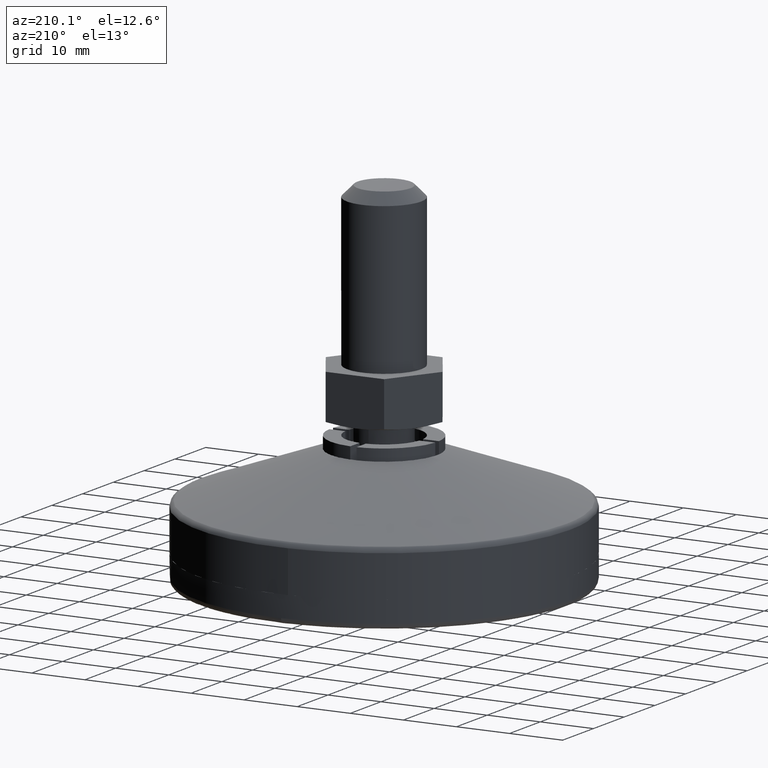
[diagram: clean part render]
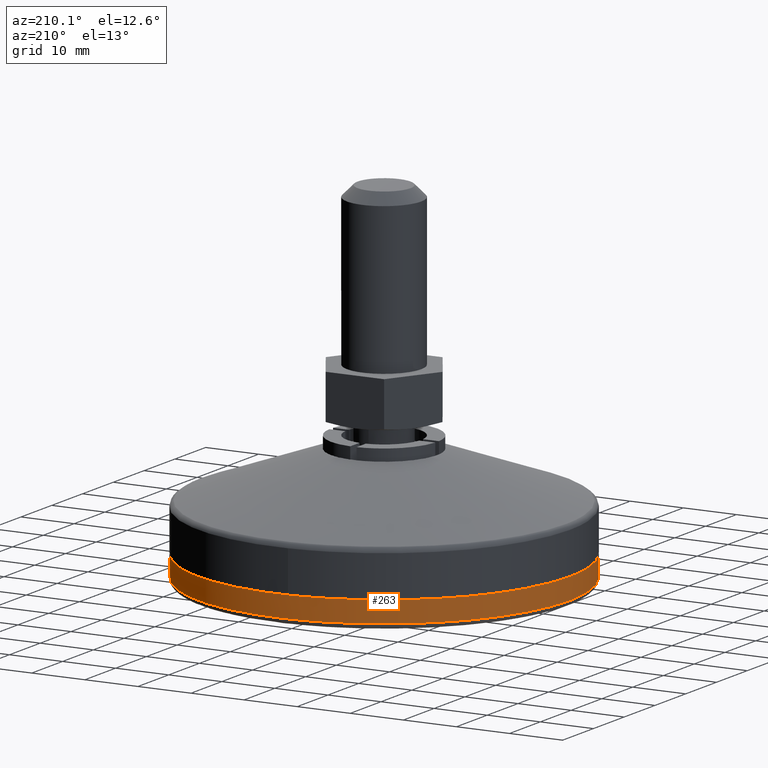
[diagram: same view with one face highlighted and labeled with its STEP entity id]
A machine part, auxiliary view. The second image highlights one B-rep face of the part: STEP entity #263.
In plain terms, the highlighted face is a freeform B-spline surface patch.
Its self-contained STEP definition (entity closure, byte-faithful):
#62=CARTESIAN_POINT('',(34.158915734717603,-7.626826065131843,0.999999999999608));
#63=VERTEX_POINT('',#62);
#64=CARTESIAN_POINT('',(2.746052590281755,-34.892107921006392,0.999999999999502));
#65=VERTEX_POINT('',#64);
#79=CARTESIAN_POINT('',(34.158915664180910,-7.626826381051620,4.999999999999801));
#80=VERTEX_POINT('',#79);
#81=CARTESIAN_POINT('',(34.158915664180910,-7.626826381051620,4.999999999999801));
#82=CARTESIAN_POINT('',(34.158915734717603,-7.626826065131843,0.999999999999608));
#83=QUASI_UNIFORM_CURVE('',1,(#81,#82),.UNSPECIFIED.,.F.,.U.);
#84=EDGE_CURVE('',#80,#63,#83,.T.);
#86=CARTESIAN_POINT('',(2.746052784867262,-34.892107905692363,4.999999999999800));
#87=VERTEX_POINT('',#86);
#101=CARTESIAN_POINT('',(2.746052784867262,-34.892107905692363,4.999999999999800));
#102=CARTESIAN_POINT('',(2.746052590281755,-34.892107921006392,0.999999999999502));
#103=QUASI_UNIFORM_CURVE('',1,(#101,#102),.UNSPECIFIED.,.F.,.U.);
#104=EDGE_CURVE('',#87,#65,#103,.T.);
#109=CARTESIAN_POINT('',(2.746068350474570,-34.892106680659467,5.100000000001711));
#110=CARTESIAN_POINT('',(-32.146038330184908,-37.638175031134047,5.100000000001712));
#111=CARTESIAN_POINT('',(-34.892106680659467,-2.746068350474570,5.100000000001711));
#112=CARTESIAN_POINT('',(-37.638175031134047,32.146038330184908,5.100000000001712));
#113=CARTESIAN_POINT('',(-2.746068350474570,34.892106680659467,5.100000000001711));
#114=CARTESIAN_POINT('',(32.146038330184908,37.638175031134047,5.100000000001712));
#115=CARTESIAN_POINT('',(34.892106680659467,2.746068350474570,5.100000000001711));
#116=CARTESIAN_POINT('',(35.304624102185414,-2.495462464672866,5.100000000001711));
#117=CARTESIAN_POINT('',(34.158910018427406,-7.626851667167752,5.100000000001710));
#118=CARTESIAN_POINT('',(2.746068350474570,-34.892106680659467,0.897499999921446));
#119=CARTESIAN_POINT('',(-32.146038330184908,-37.638175031134047,0.897499999921446));
#120=CARTESIAN_POINT('',(-34.892106680659467,-2.746068350474570,0.897499999921446));
#121=CARTESIAN_POINT('',(-37.638175031134047,32.146038330184908,0.897499999921446));
#122=CARTESIAN_POINT('',(-2.746068350474570,34.892106680659467,0.897499999921446));
#123=CARTESIAN_POINT('',(32.146038330184908,37.638175031134047,0.897499999921446));
#124=CARTESIAN_POINT('',(34.892106680659467,2.746068350474570,0.897499999921446));
#125=CARTESIAN_POINT('',(35.304624102185414,-2.495462464672866,0.897499999921446));
#126=CARTESIAN_POINT('',(34.158910018427406,-7.626851667167752,0.897499999921446));
#134=(BOUNDED_SURFACE()B_SPLINE_SURFACE(2,1,((#109,#118),(#110,#119),(#111,#120),(#112,#121),(#113,#122),(#114,#123),(#115,#124),(#116,#125),(#117,#126)),.UNSPECIFIED.,.F.,.F.,.U.)B_SPLINE_SURFACE_WITH_KNOTS((3,2,2,2,3),(2,2),(0.0,57.989898732233300,115.979797464466600,173.969696196699910,185.567675943146610),(0.0,4.202500000080265),.UNSPECIFIED.)GEOMETRIC_REPRESENTATION_ITEM()RATIONAL_B_SPLINE_SURFACE(((1.0,1.0),(0.707106781186548,0.707106781186548),(1.0,1.0),(0.707106781186548,0.707106781186548),(1.0,1.0),(0.707106781186548,0.707106781186548),(1.0,1.0),(0.941421356237310,0.941421356237310),(0.906274169979695,0.906274169979695)))REPRESENTATION_ITEM('')SURFACE());
#135=CARTESIAN_POINT('',(35.0,0.0,0.999999999999801));
#136=VERTEX_POINT('',#135);
#137=CARTESIAN_POINT('',(35.0,0.0,0.999999999999801));
#138=CARTESIAN_POINT('',(35.000000000000007,-3.859790302433122,0.999999999999801));
#139=CARTESIAN_POINT('',(34.158915734717596,-7.626826065131842,0.999999999999608));
#147=(BOUNDED_CURVE()B_SPLINE_CURVE(2,(#137,#138,#139),.UNSPECIFIED.,.F.,.U.)B_SPLINE_CURVE_WITH_KNOTS((3,3),(0.500000000000000,0.537286544577424),.UNSPECIFIED.)CURVE()GEOMETRIC_REPRESENTATION_ITEM()RATIONAL_B_SPLINE_CURVE((1.0,0.956316095761148,0.925662766264038))REPRESENTATION_ITEM(''));
#148=EDGE_CURVE('',#136,#63,#147,.T.);
#149=ORIENTED_EDGE('',*,*,#148,.F.);
#150=CARTESIAN_POINT('',(-0.879553340543419,34.988946624914831,0.999999999923406));
#151=VERTEX_POINT('',#150);
#152=CARTESIAN_POINT('',(-0.879553340543419,34.988946624914824,0.999999999923406));
#153=CARTESIAN_POINT('',(-0.439846124344907,35.0,0.999999999999801));
#154=CARTESIAN_POINT('',(0.0,35.0,0.999999999999801));
#155=CARTESIAN_POINT('',(34.999999999999993,34.999999999999993,0.999999999999801));
#156=CARTESIAN_POINT('',(35.0,0.0,0.999999999999801));
#164=(BOUNDED_CURVE()B_SPLINE_CURVE(2,(#152,#153,#154,#155,#156),.UNSPECIFIED.,.F.,.U.)B_SPLINE_CURVE_WITH_KNOTS((3,2,3),(0.245579891769541,0.250000000000000,0.500000000000000),.UNSPECIFIED.)CURVE()GEOMETRIC_REPRESENTATION_ITEM()RATIONAL_B_SPLINE_CURVE((0.989826157680975,0.994821521091509,1.0,0.707106781186548,1.0))REPRESENTATION_ITEM(''));
#165=EDGE_CURVE('',#151,#136,#164,.T.);
#166=ORIENTED_EDGE('',*,*,#165,.F.);
#167=CARTESIAN_POINT('',(-35.0,0.0,0.999999999999801));
#168=VERTEX_POINT('',#167);
#169=CARTESIAN_POINT('',(-35.0,0.0,0.999999999999801));
#170=CARTESIAN_POINT('',(-35.000000000000007,34.131225666270772,0.999999999999801));
#171=CARTESIAN_POINT('',(-0.879553340543419,34.988946624914831,0.999999999923406));
#179=(BOUNDED_CURVE()B_SPLINE_CURVE(2,(#169,#170,#171),.UNSPECIFIED.,.F.,.U.)B_SPLINE_CURVE_WITH_KNOTS((3,3),(0.0,0.245579891769541),.UNSPECIFIED.)CURVE()GEOMETRIC_REPRESENTATION_ITEM()RATIONAL_B_SPLINE_CURVE((1.0,0.712285260095039,0.989826157680974))REPRESENTATION_ITEM(''));
#180=EDGE_CURVE('',#168,#151,#179,.T.);
#181=ORIENTED_EDGE('',*,*,#180,.F.);
#182=CARTESIAN_POINT('',(-34.988946624914831,-0.879553340543416,0.999999999923404));
#183=VERTEX_POINT('',#182);
#184=CARTESIAN_POINT('',(-34.988946624914824,-0.879553340543416,0.999999999923404));
#185=CARTESIAN_POINT('',(-35.0,-0.439846124344904,0.999999999999801));
#186=CARTESIAN_POINT('',(-35.0,0.0,0.999999999999801));
#194=(BOUNDED_CURVE()B_SPLINE_CURVE(2,(#184,#185,#186),.UNSPECIFIED.,.F.,.U.)B_SPLINE_CURVE_WITH_KNOTS((3,3),(0.995579891769541,1.0),.UNSPECIFIED.)CURVE()GEOMETRIC_REPRESENTATION_ITEM()RATIONAL_B_SPLINE_CURVE((0.989826157680975,0.994821521091509,1.0))REPRESENTATION_ITEM(''));
#195=EDGE_CURVE('',#183,#168,#194,.T.);
#196=ORIENTED_EDGE('',*,*,#195,.F.);
#197=CARTESIAN_POINT('',(2.746052590281755,-34.892107921006385,0.999999999999502));
#198=CARTESIAN_POINT('',(1.375145828603335,-35.0,0.999999999999801));
#199=CARTESIAN_POINT('',(0.0,-35.0,0.999999999999801));
#200=CARTESIAN_POINT('',(-34.131225666270907,-35.0,0.999999999999801));
#201=CARTESIAN_POINT('',(-34.988946624914838,-0.879553340543416,0.999999999923404));
#209=(BOUNDED_CURVE()B_SPLINE_CURVE(2,(#197,#198,#199,#200,#201),.UNSPECIFIED.,.F.,.U.)B_SPLINE_CURVE_WITH_KNOTS((3,2,3),(0.736331378062404,0.750000000000000,0.995579891769542),.UNSPECIFIED.)CURVE()GEOMETRIC_REPRESENTATION_ITEM()RATIONAL_B_SPLINE_CURVE((0.969723517761617,0.983986213295813,1.0,0.712285260095038,0.989826157680976))REPRESENTATION_ITEM(''));
#210=EDGE_CURVE('',#65,#183,#209,.T.);
#211=ORIENTED_EDGE('',*,*,#210,.F.);
#212=ORIENTED_EDGE('',*,*,#104,.F.);
#213=CARTESIAN_POINT('',(-35.0,0.0,4.999999999999800));
#214=VERTEX_POINT('',#213);
#215=CARTESIAN_POINT('',(2.746052784867262,-34.892107905692349,4.999999999999800));
#216=CARTESIAN_POINT('',(1.375145926347584,-35.0,4.999999999999800));
#217=CARTESIAN_POINT('',(0.0,-35.0,4.999999999999800));
#218=CARTESIAN_POINT('',(-34.999999999999993,-34.999999999999993,4.999999999999801));
#219=CARTESIAN_POINT('',(-35.0,0.0,4.999999999999800));
#227=(BOUNDED_CURVE()B_SPLINE_CURVE(2,(#215,#216,#217,#218,#219),.UNSPECIFIED.,.F.,.U.)B_SPLINE_CURVE_WITH_KNOTS((3,2,3),(0.736331377106408,0.750000000000000,1.0),.UNSPECIFIED.)CURVE()GEOMETRIC_REPRESENTATION_ITEM()RATIONAL_B_SPLINE_CURVE((0.969723515766524,0.983986212175794,1.0,0.707106781186548,1.0))REPRESENTATION_ITEM(''));
#228=EDGE_CURVE('',#87,#214,#227,.T.);
#229=ORIENTED_EDGE('',*,*,#228,.T.);
#230=CARTESIAN_POINT('',(35.0,0.0,4.999999999999800));
#231=VERTEX_POINT('',#230);
#232=CARTESIAN_POINT('',(-35.0,0.0,4.999999999999800));
#233=CARTESIAN_POINT('',(-34.999999999999993,34.999999999999993,4.999999999999801));
#234=CARTESIAN_POINT('',(0.0,35.0,4.999999999999800));
#235=CARTESIAN_POINT('',(34.999999999999993,34.999999999999993,4.999999999999801));
#236=CARTESIAN_POINT('',(35.0,0.0,4.999999999999800));
#244=(BOUNDED_CURVE()B_SPLINE_CURVE(2,(#232,#233,#234,#235,#236),.UNSPECIFIED.,.F.,.U.)B_SPLINE_CURVE_WITH_KNOTS((3,2,3),(0.0,0.250000000000000,0.500000000000000),.UNSPECIFIED.)CURVE()GEOMETRIC_REPRESENTATION_ITEM()RATIONAL_B_SPLINE_CURVE((1.0,0.707106781186548,1.0,0.707106781186548,1.0))REPRESENTATION_ITEM(''));
#245=EDGE_CURVE('',#214,#231,#244,.T.);
#246=ORIENTED_EDGE('',*,*,#245,.T.);
#247=CARTESIAN_POINT('',(35.0,0.0,4.999999999999800));
#248=CARTESIAN_POINT('',(34.999999999999993,-3.859790466250728,4.999999999999800));
#249=CARTESIAN_POINT('',(34.158915664180917,-7.626826381051620,4.999999999999801));
#257=(BOUNDED_CURVE()B_SPLINE_CURVE(2,(#247,#248,#249),.UNSPECIFIED.,.F.,.U.)B_SPLINE_CURVE_WITH_KNOTS((3,3),(0.500000000000000,0.537286546090813),.UNSPECIFIED.)CURVE()GEOMETRIC_REPRESENTATION_ITEM()RATIONAL_B_SPLINE_CURVE((1.0,0.956316093988102,0.925662763775720))REPRESENTATION_ITEM(''));
#258=EDGE_CURVE('',#231,#80,#257,.T.);
#259=ORIENTED_EDGE('',*,*,#258,.T.);
#260=ORIENTED_EDGE('',*,*,#84,.T.);
#261=EDGE_LOOP('',(#149,#166,#181,#196,#211,#212,#229,#246,#259,#260));
#262=FACE_OUTER_BOUND('',#261,.T.);
#263=ADVANCED_FACE('',(#262),#134,.T.);